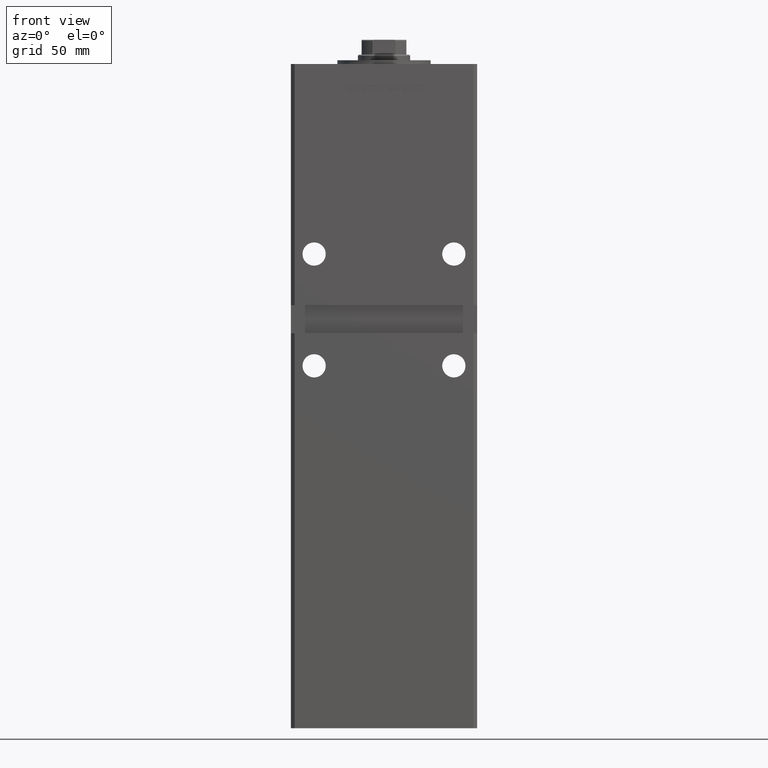
[diagram: clean part render]
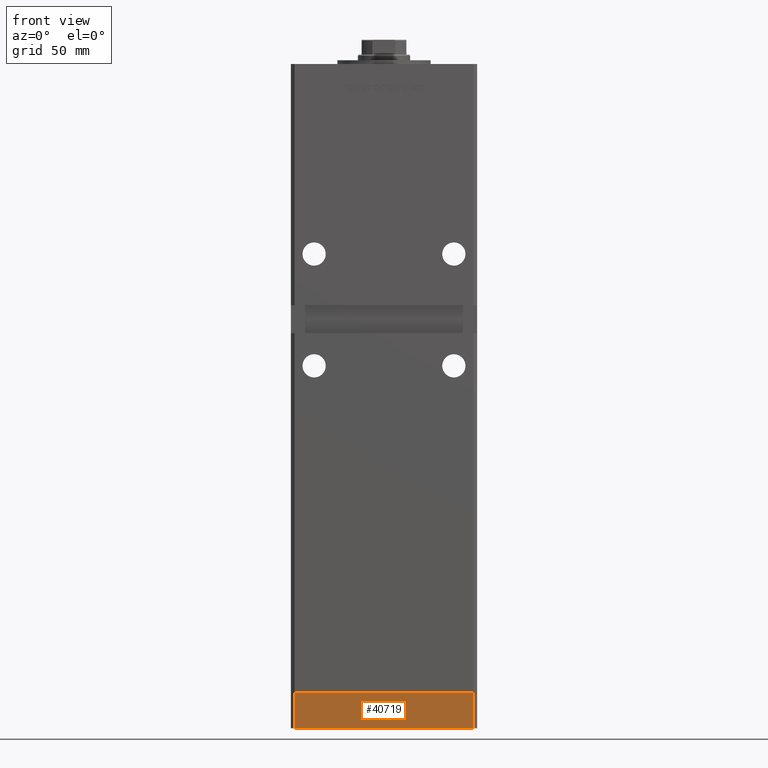
[diagram: same view with one face highlighted and labeled with its STEP entity id]
A machine part, front view. The second image highlights one B-rep face of the part: STEP entity #40719.
In plain terms, the highlighted planar face has unit normal (0, -1, -0).
Its self-contained STEP definition (entity closure, byte-faithful):
#273 = CARTESIAN_POINT ( 'NONE',  ( -47.99999999999999289, -43.50000000000001421, -19.00000000000000000 ) ) ;
#1824 = DIRECTION ( 'NONE',  ( 0.000000000000000000, 0.000000000000000000, 1.000000000000000000 ) ) ;
#2932 = FACE_OUTER_BOUND ( 'NONE', #49475, .T. ) ;
#4801 = EDGE_CURVE ( 'NONE', #43533, #21560, #18217, .T. ) ;
#5894 = DIRECTION ( 'NONE',  ( 1.000000000000000000, 0.000000000000000000, 0.000000000000000000 ) ) ;
#7223 = CARTESIAN_POINT ( 'NONE',  ( -47.99999999999999289, -43.50000000000001421, -19.00000000000000000 ) ) ;
#11525 = VERTEX_POINT ( 'NONE', #20028 ) ;
#15208 = VECTOR ( 'NONE', #32534, 1000.000000000000000 ) ;
#18217 = LINE ( 'NONE', #47270, #34877 ) ;
#19729 = LINE ( 'NONE', #27292, #48384 ) ;
#20028 = CARTESIAN_POINT ( 'NONE',  ( -47.99999999999999289, -43.50000000000001421, -19.00000000000000000 ) ) ;
#21560 = VERTEX_POINT ( 'NONE', #36762 ) ;
#23593 = VERTEX_POINT ( 'NONE', #50016 ) ;
#24137 = DIRECTION ( 'NONE',  ( 0.000000000000000000, -0.000000000000000000, -1.000000000000000000 ) ) ;
#24742 = LINE ( 'NONE', #273, #15208 ) ;
#24939 = CARTESIAN_POINT ( 'NONE',  ( -47.99999999999999289, -43.50000000000001421, 0.000000000000000000 ) ) ;
#24951 = ORIENTED_EDGE ( 'NONE', *, *, #51191, .T. ) ;
#27121 = DIRECTION ( 'NONE',  ( 0.000000000000000000, -1.000000000000000000, 0.000000000000000000 ) ) ;
#27292 = CARTESIAN_POINT ( 'NONE',  ( -47.99999999999999289, -43.50000000000001421, -19.00000000000000000 ) ) ;
#27801 = EDGE_CURVE ( 'NONE', #11525, #43533, #19729, .T. ) ;
#29500 = ORIENTED_EDGE ( 'NONE', *, *, #27801, .F. ) ;
#32534 = DIRECTION ( 'NONE',  ( 1.000000000000000000, 0.000000000000000000, 0.000000000000000000 ) ) ;
#34877 = VECTOR ( 'NONE', #5894, 1000.000000000000000 ) ;
#36762 = CARTESIAN_POINT ( 'NONE',  ( 47.99999999999999289, -43.50000000000001421, 0.000000000000000000 ) ) ;
#38632 = CARTESIAN_POINT ( 'NONE',  ( 47.99999999999999289, -43.50000000000001421, -19.00000000000000000 ) ) ;
#40162 = ORIENTED_EDGE ( 'NONE', *, *, #43142, .T. ) ;
#40719 = ADVANCED_FACE ( 'NONE', ( #2932 ), #52894, .T. ) ;
#42401 = LINE ( 'NONE', #38632, #46813 ) ;
#42740 = AXIS2_PLACEMENT_3D ( 'NONE', #7223, #27121, #24137 ) ;
#43142 = EDGE_CURVE ( 'NONE', #11525, #23593, #24742, .T. ) ;
#43533 = VERTEX_POINT ( 'NONE', #24939 ) ;
#43682 = DIRECTION ( 'NONE',  ( 0.000000000000000000, 0.000000000000000000, 1.000000000000000000 ) ) ;
#44199 = ORIENTED_EDGE ( 'NONE', *, *, #4801, .F. ) ;
#46813 = VECTOR ( 'NONE', #1824, 1000.000000000000000 ) ;
#47270 = CARTESIAN_POINT ( 'NONE',  ( -47.99999999999999289, -43.50000000000001421, 0.000000000000000000 ) ) ;
#48384 = VECTOR ( 'NONE', #43682, 1000.000000000000000 ) ;
#49475 = EDGE_LOOP ( 'NONE', ( #44199, #29500, #40162, #24951 ) ) ;
#50016 = CARTESIAN_POINT ( 'NONE',  ( 47.99999999999999289, -43.50000000000001421, -19.00000000000000000 ) ) ;
#51191 = EDGE_CURVE ( 'NONE', #23593, #21560, #42401, .T. ) ;
#52894 = PLANE ( 'NONE',  #42740 ) ;